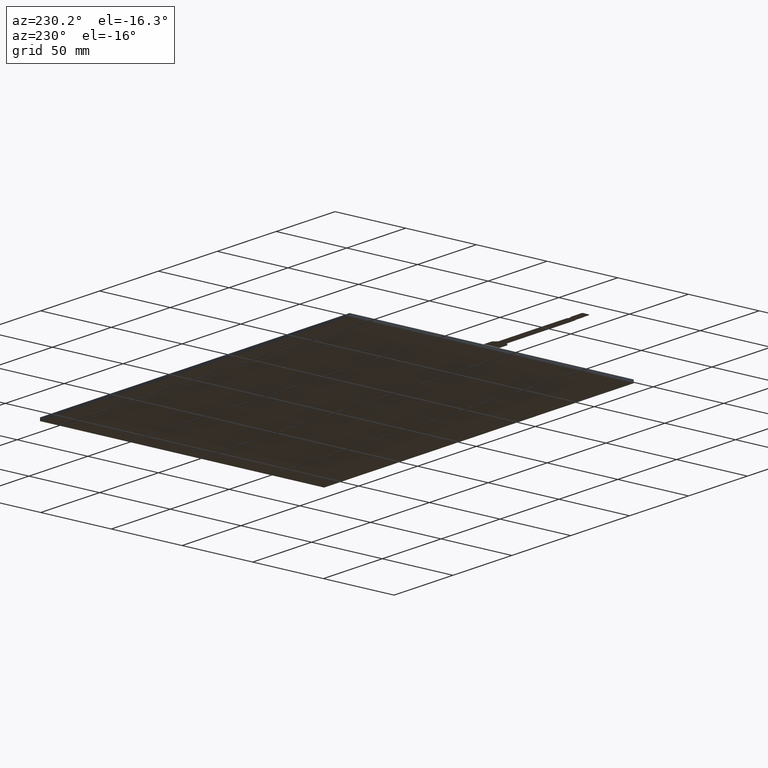
[diagram: clean part render]
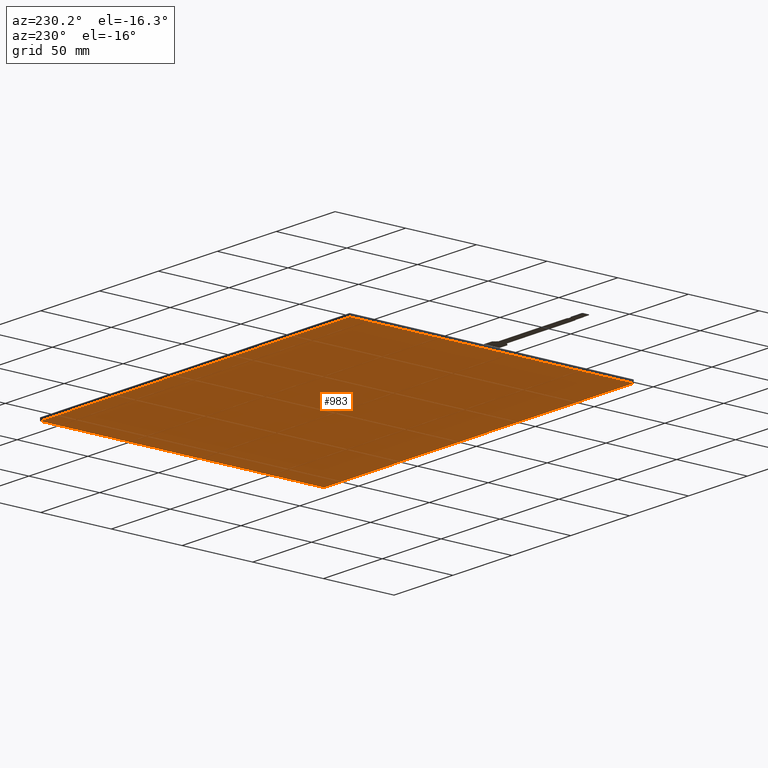
[diagram: same view with one face highlighted and labeled with its STEP entity id]
A machine part, auxiliary view. The second image highlights one B-rep face of the part: STEP entity #983.
In plain terms, the highlighted planar face has unit normal (0, 0, -1).
Its self-contained STEP definition (entity closure, byte-faithful):
#73=FACE_OUTER_BOUND('',#127,.T.);
#127=EDGE_LOOP('',(#714,#715,#716,#717));
#193=LINE('',#1424,#319);
#195=LINE('',#1428,#321);
#197=LINE('',#1432,#323);
#199=LINE('',#1435,#325);
#319=VECTOR('',#1158,10.);
#321=VECTOR('',#1162,10.);
#323=VECTOR('',#1166,10.);
#325=VECTOR('',#1170,10.);
#436=VERTEX_POINT('',#1421);
#437=VERTEX_POINT('',#1423);
#438=VERTEX_POINT('',#1427);
#439=VERTEX_POINT('',#1431);
#537=EDGE_CURVE('',#437,#436,#193,.T.);
#539=EDGE_CURVE('',#438,#437,#195,.T.);
#541=EDGE_CURVE('',#439,#438,#197,.T.);
#543=EDGE_CURVE('',#436,#439,#199,.T.);
#714=ORIENTED_EDGE('',*,*,#543,.T.);
#715=ORIENTED_EDGE('',*,*,#541,.T.);
#716=ORIENTED_EDGE('',*,*,#539,.T.);
#717=ORIENTED_EDGE('',*,*,#537,.T.);
#937=PLANE('',#1056);
#983=ADVANCED_FACE('',(#73),#937,.T.);
#1056=AXIS2_PLACEMENT_3D('',#1437,#1173,#1174);
#1158=DIRECTION('',(-2.65127886477649E-16,1.,0.));
#1162=DIRECTION('',(-1.,-1.35084170296597E-16,0.));
#1166=DIRECTION('',(0.,-1.,0.));
#1170=DIRECTION('',(1.,0.,0.));
#1173=DIRECTION('center_axis',(0.,0.,-1.));
#1174=DIRECTION('ref_axis',(-1.,0.,0.));
#1421=CARTESIAN_POINT('',(-133.,100.5,-2.1));
#1423=CARTESIAN_POINT('',(-133.,-100.5,-2.1));
#1424=CARTESIAN_POINT('',(-133.,100.5,-2.1));
#1427=CARTESIAN_POINT('',(130.,-100.5,-2.1));
#1428=CARTESIAN_POINT('',(-133.,-100.5,-2.1));
#1431=CARTESIAN_POINT('',(130.,100.5,-2.1));
#1432=CARTESIAN_POINT('',(130.,-100.5,-2.1));
#1435=CARTESIAN_POINT('',(130.,100.5,-2.1));
#1437=CARTESIAN_POINT('Origin',(-1.50000000000002,3.5527136788005E-14,-2.1));